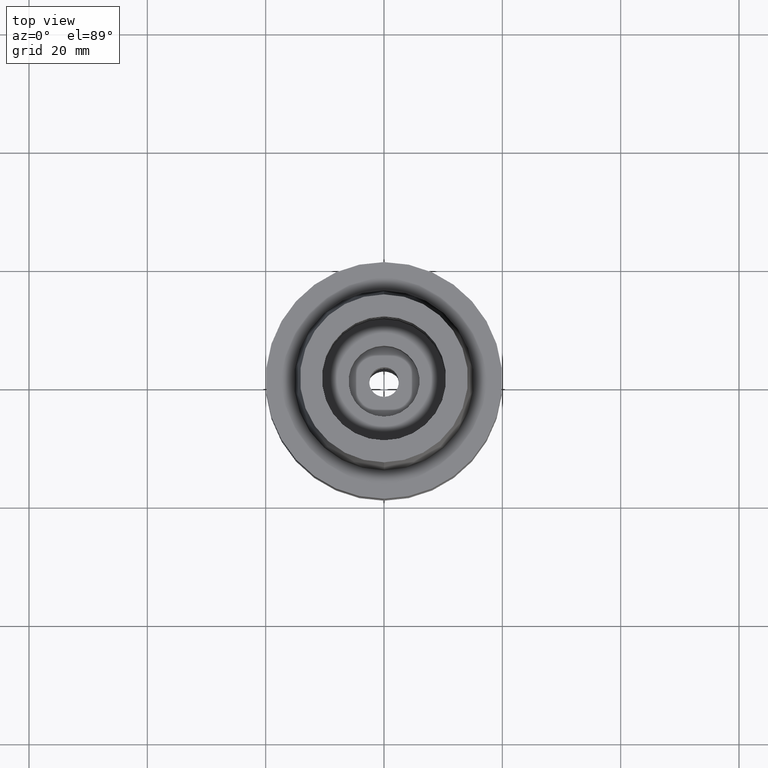
[diagram: clean part render]
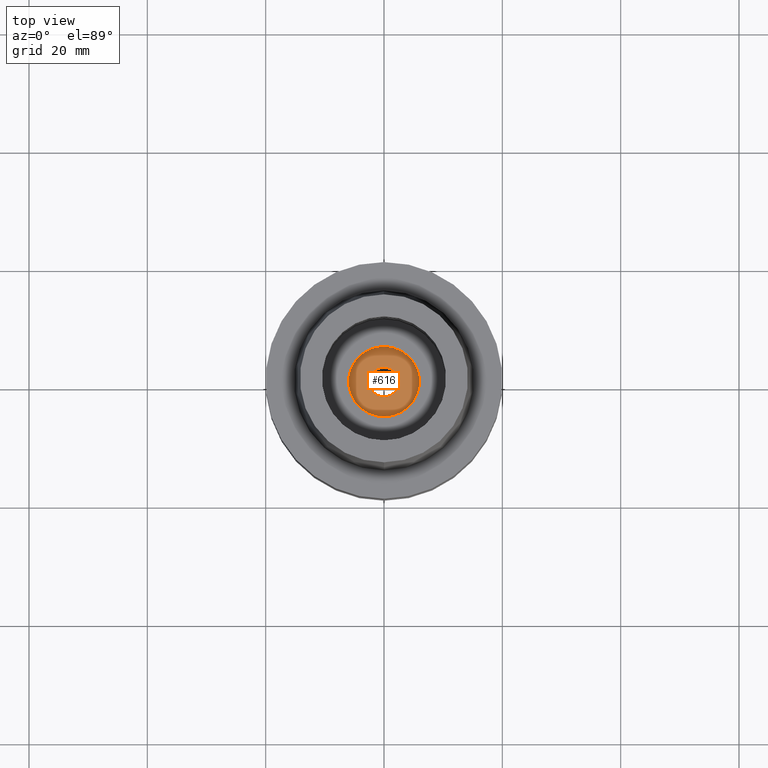
[diagram: same view with one face highlighted and labeled with its STEP entity id]
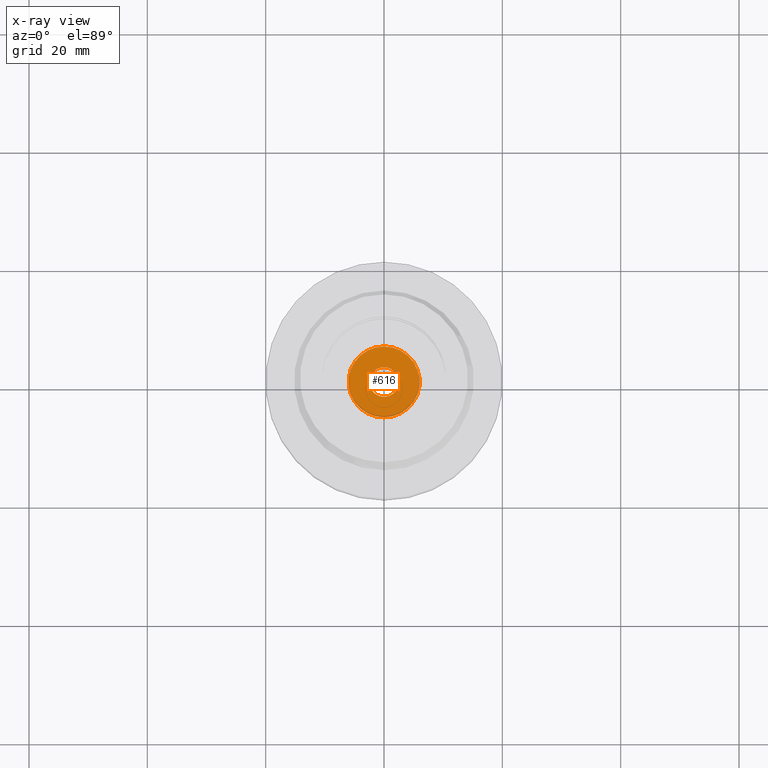
[diagram: x-ray of the same camera — body ghosted, the highlighted face saturated]
A machine part, top view. The second image highlights one B-rep face of the part: STEP entity #616.
The next image is the same camera in x-ray: the body ghosted, the highlighted face saturated — about 0% of this face is hidden behind the body in this view.
In plain terms, the highlighted planar face has unit normal (0, 0, 1).
Its self-contained STEP definition (entity closure, byte-faithful):
#102 = VERTEX_POINT ( 'NONE', #119 ) ;
#118 = EDGE_CURVE ( 'NONE', #102, #829, #388, .T. ) ;
#119 = CARTESIAN_POINT ( 'NONE',  ( 0.0000000000000000000, 6.000000000000000000, -15.94999999999999929 ) ) ;
#388 = CIRCLE ( 'NONE', #2390, 6.000000000000000000 ) ;
#397 = CARTESIAN_POINT ( 'NONE',  ( 0.0000000000000000000, 0.0000000000000000000, -15.94999999999999929 ) ) ;
#442 = CARTESIAN_POINT ( 'NONE',  ( 0.0000000000000000000, 0.0000000000000000000, -15.94999999999999929 ) ) ;
#540 = DIRECTION ( 'NONE',  ( 0.0000000000000000000, 0.0000000000000000000, -1.000000000000000000 ) ) ;
#607 = CIRCLE ( 'NONE', #1836, 2.500000000000000000 ) ;
#616 = ADVANCED_FACE ( 'NONE', ( #968, #979 ), #2264, .T. ) ;
#632 = DIRECTION ( 'NONE',  ( 0.0000000000000000000, -1.000000000000000000, 0.0000000000000000000 ) ) ;
#689 = AXIS2_PLACEMENT_3D ( 'NONE', #2040, #2467, #1847 ) ;
#829 = VERTEX_POINT ( 'NONE', #1168 ) ;
#868 = CARTESIAN_POINT ( 'NONE',  ( 0.0000000000000000000, 2.500000000000000000, -15.94999999999999929 ) ) ;
#869 = CIRCLE ( 'NONE', #2048, 6.000000000000000000 ) ;
#913 = EDGE_LOOP ( 'NONE', ( #1093, #1575 ) ) ;
#968 = FACE_OUTER_BOUND ( 'NONE', #913, .T. ) ;
#979 = FACE_BOUND ( 'NONE', #1649, .T. ) ;
#1026 = DIRECTION ( 'NONE',  ( 0.0000000000000000000, 0.0000000000000000000, 1.000000000000000000 ) ) ;
#1093 = ORIENTED_EDGE ( 'NONE', *, *, #118, .F. ) ;
#1112 = DIRECTION ( 'NONE',  ( 0.0000000000000000000, 1.000000000000000000, 0.0000000000000000000 ) ) ;
#1145 = ORIENTED_EDGE ( 'NONE', *, *, #1998, .F. ) ;
#1165 = CARTESIAN_POINT ( 'NONE',  ( 0.0000000000000000000, 0.0000000000000000000, -15.94999999999999929 ) ) ;
#1168 = CARTESIAN_POINT ( 'NONE',  ( 0.0000000000000000000, -6.000000000000000000, -15.94999999999999929 ) ) ;
#1186 = CARTESIAN_POINT ( 'NONE',  ( 0.0000000000000000000, -2.500000000000000000, -15.94999999999999929 ) ) ;
#1353 = AXIS2_PLACEMENT_3D ( 'NONE', #397, #2121, #2532 ) ;
#1534 = VERTEX_POINT ( 'NONE', #1186 ) ;
#1575 = ORIENTED_EDGE ( 'NONE', *, *, #2240, .F. ) ;
#1649 = EDGE_LOOP ( 'NONE', ( #1145, #2234 ) ) ;
#1747 = VERTEX_POINT ( 'NONE', #868 ) ;
#1836 = AXIS2_PLACEMENT_3D ( 'NONE', #442, #1026, #632 ) ;
#1847 = DIRECTION ( 'NONE',  ( 1.000000000000000000, 0.0000000000000000000, 0.0000000000000000000 ) ) ;
#1961 = CIRCLE ( 'NONE', #1353, 2.500000000000000000 ) ;
#1986 = DIRECTION ( 'NONE',  ( 0.0000000000000000000, 0.0000000000000000000, -1.000000000000000000 ) ) ;
#1998 = EDGE_CURVE ( 'NONE', #1747, #1534, #1961, .T. ) ;
#2040 = CARTESIAN_POINT ( 'NONE',  ( 0.0000000000000000000, 0.0000000000000000000, -15.94999999999999929 ) ) ;
#2048 = AXIS2_PLACEMENT_3D ( 'NONE', #2660, #540, #2210 ) ;
#2121 = DIRECTION ( 'NONE',  ( 0.0000000000000000000, 0.0000000000000000000, 1.000000000000000000 ) ) ;
#2210 = DIRECTION ( 'NONE',  ( 0.0000000000000000000, -1.000000000000000000, 0.0000000000000000000 ) ) ;
#2234 = ORIENTED_EDGE ( 'NONE', *, *, #2454, .F. ) ;
#2240 = EDGE_CURVE ( 'NONE', #829, #102, #869, .T. ) ;
#2264 = PLANE ( 'NONE',  #689 ) ;
#2390 = AXIS2_PLACEMENT_3D ( 'NONE', #1165, #1986, #1112 ) ;
#2454 = EDGE_CURVE ( 'NONE', #1534, #1747, #607, .T. ) ;
#2467 = DIRECTION ( 'NONE',  ( 0.0000000000000000000, 0.0000000000000000000, 1.000000000000000000 ) ) ;
#2532 = DIRECTION ( 'NONE',  ( 0.0000000000000000000, 1.000000000000000000, 0.0000000000000000000 ) ) ;
#2660 = CARTESIAN_POINT ( 'NONE',  ( 0.0000000000000000000, 0.0000000000000000000, -15.94999999999999929 ) ) ;